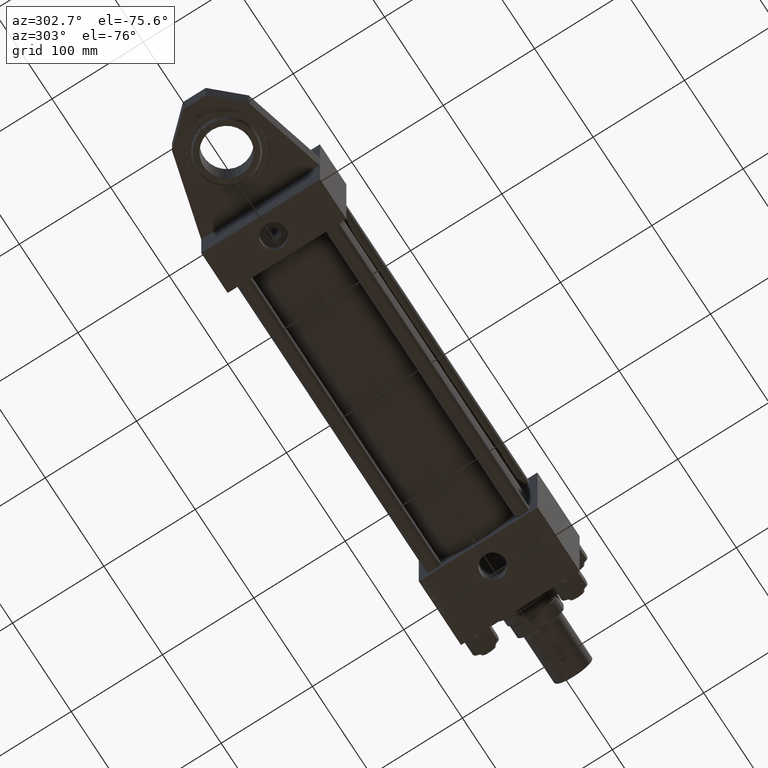
[diagram: clean part render]
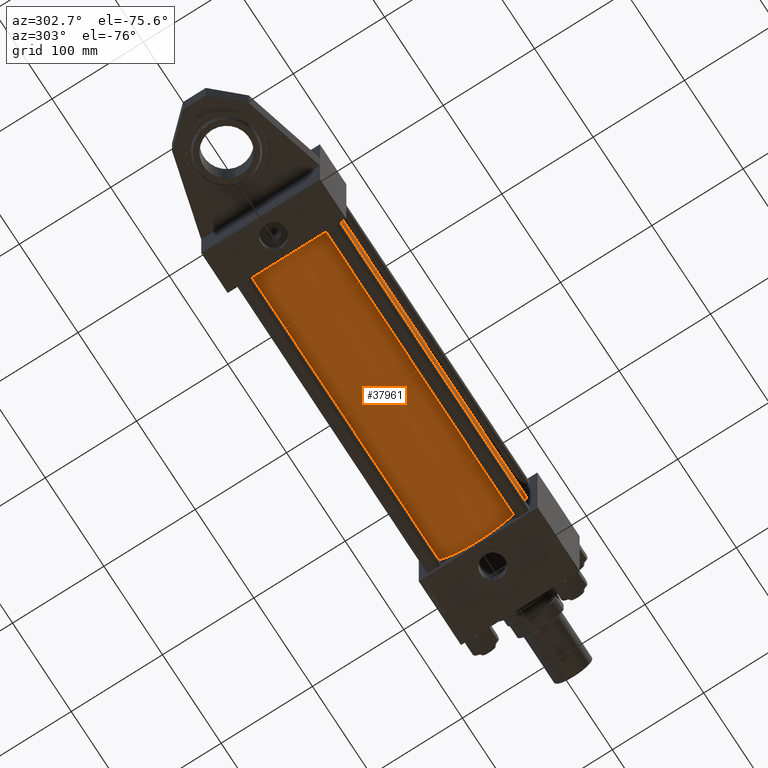
[diagram: same view with one face highlighted and labeled with its STEP entity id]
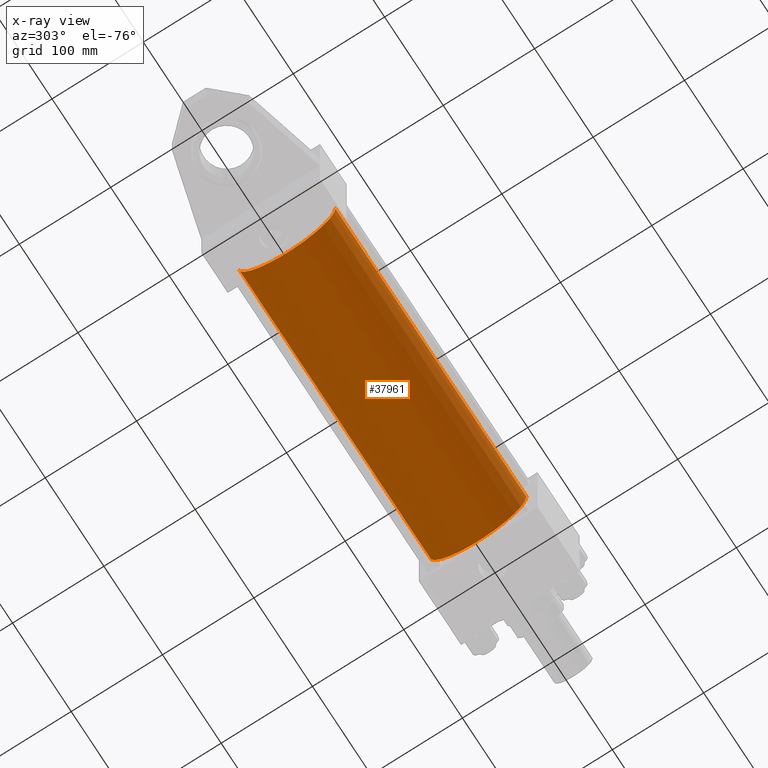
[diagram: x-ray of the same camera — body ghosted, the highlighted face saturated]
A machine part, auxiliary view. The second image highlights one B-rep face of the part: STEP entity #37961.
The next image is the same camera in x-ray: the body ghosted, the highlighted face saturated — about 0% of this face is hidden behind the body in this view.
In plain terms, the highlighted cylindrical surface (partial cylindrical patch) has radius 53 mm, axis along (-1, 0, -0).
Its self-contained STEP definition (entity closure, byte-faithful):
#822 = CARTESIAN_POINT ( 'NONE',  ( 371.0000000000000000, -2.602085213965210642E-15, 53.00000000000000711 ) ) ;
#4594 = ORIENTED_EDGE ( 'NONE', *, *, #19778, .F. ) ;
#5542 = DIRECTION ( 'NONE',  ( 0.000000000000000000, 0.000000000000000000, 1.000000000000000000 ) ) ;
#6822 = DIRECTION ( 'NONE',  ( 0.000000000000000000, 0.000000000000000000, -1.000000000000000000 ) ) ;
#9304 = DIRECTION ( 'NONE',  ( -1.000000000000000000, -0.000000000000000000, -0.000000000000000000 ) ) ;
#10214 = ORIENTED_EDGE ( 'NONE', *, *, #19660, .F. ) ;
#12310 = EDGE_LOOP ( 'NONE', ( #10214, #4594, #16695, #45150 ) ) ;
#12853 = AXIS2_PLACEMENT_3D ( 'NONE', #46161, #9304, #5542 ) ;
#14950 = CARTESIAN_POINT ( 'NONE',  ( 44.99999999999998579, -2.602085213965210642E-15, 0.000000000000000000 ) ) ;
#16695 = ORIENTED_EDGE ( 'NONE', *, *, #52885, .T. ) ;
#18365 = LINE ( 'NONE', #38054, #42048 ) ;
#18895 = CARTESIAN_POINT ( 'NONE',  ( 371.0000000000000000, -2.602085213965210642E-15, 0.000000000000000000 ) ) ;
#19660 = EDGE_CURVE ( 'NONE', #43499, #35852, #18365, .T. ) ;
#19778 = EDGE_CURVE ( 'NONE', #24912, #43499, #26571, .T. ) ;
#23284 = EDGE_CURVE ( 'NONE', #41024, #35852, #43069, .T. ) ;
#24912 = VERTEX_POINT ( 'NONE', #822 ) ;
#26220 = CYLINDRICAL_SURFACE ( 'NONE', #12853, 53.00000000000000711 ) ;
#26571 = CIRCLE ( 'NONE', #48070, 53.00000000000000711 ) ;
#30087 = LINE ( 'NONE', #46509, #45113 ) ;
#30600 = DIRECTION ( 'NONE',  ( -1.000000000000000000, -0.000000000000000000, -0.000000000000000000 ) ) ;
#34045 = FACE_OUTER_BOUND ( 'NONE', #12310, .T. ) ;
#34531 = DIRECTION ( 'NONE',  ( -1.000000000000000000, -0.000000000000000000, -0.000000000000000000 ) ) ;
#35852 = VERTEX_POINT ( 'NONE', #49774 ) ;
#37961 = ADVANCED_FACE ( 'NONE', ( #34045 ), #26220, .T. ) ;
#38054 = CARTESIAN_POINT ( 'NONE',  ( 371.0000000000000000, 3.888542821515762466E-15, -53.00000000000000711 ) ) ;
#39186 = DIRECTION ( 'NONE',  ( 1.000000000000000000, -0.000000000000000000, 0.000000000000000000 ) ) ;
#39371 = DIRECTION ( 'NONE',  ( 1.000000000000000000, 0.000000000000000000, 0.000000000000000000 ) ) ;
#41024 = VERTEX_POINT ( 'NONE', #45308 ) ;
#42048 = VECTOR ( 'NONE', #34531, 1000.000000000000000 ) ;
#43069 = CIRCLE ( 'NONE', #52511, 53.00000000000000711 ) ;
#43499 = VERTEX_POINT ( 'NONE', #46266 ) ;
#45113 = VECTOR ( 'NONE', #30600, 1000.000000000000000 ) ;
#45150 = ORIENTED_EDGE ( 'NONE', *, *, #23284, .T. ) ;
#45308 = CARTESIAN_POINT ( 'NONE',  ( 44.99999999999998579, -2.602085213965210642E-15, 53.00000000000000711 ) ) ;
#46161 = CARTESIAN_POINT ( 'NONE',  ( 371.0000000000000000, -2.602085213965210642E-15, 0.000000000000000000 ) ) ;
#46266 = CARTESIAN_POINT ( 'NONE',  ( 371.0000000000000000, 3.888542821515762466E-15, -53.00000000000000711 ) ) ;
#46509 = CARTESIAN_POINT ( 'NONE',  ( 371.0000000000000000, -2.602085213965210642E-15, 53.00000000000000711 ) ) ;
#48070 = AXIS2_PLACEMENT_3D ( 'NONE', #18895, #39371, #6822 ) ;
#48326 = DIRECTION ( 'NONE',  ( 0.000000000000000000, 0.000000000000000000, 1.000000000000000000 ) ) ;
#49774 = CARTESIAN_POINT ( 'NONE',  ( 44.99999999999998579, 3.888542821515762466E-15, -53.00000000000000711 ) ) ;
#52511 = AXIS2_PLACEMENT_3D ( 'NONE', #14950, #39186, #48326 ) ;
#52885 = EDGE_CURVE ( 'NONE', #24912, #41024, #30087, .T. ) ;